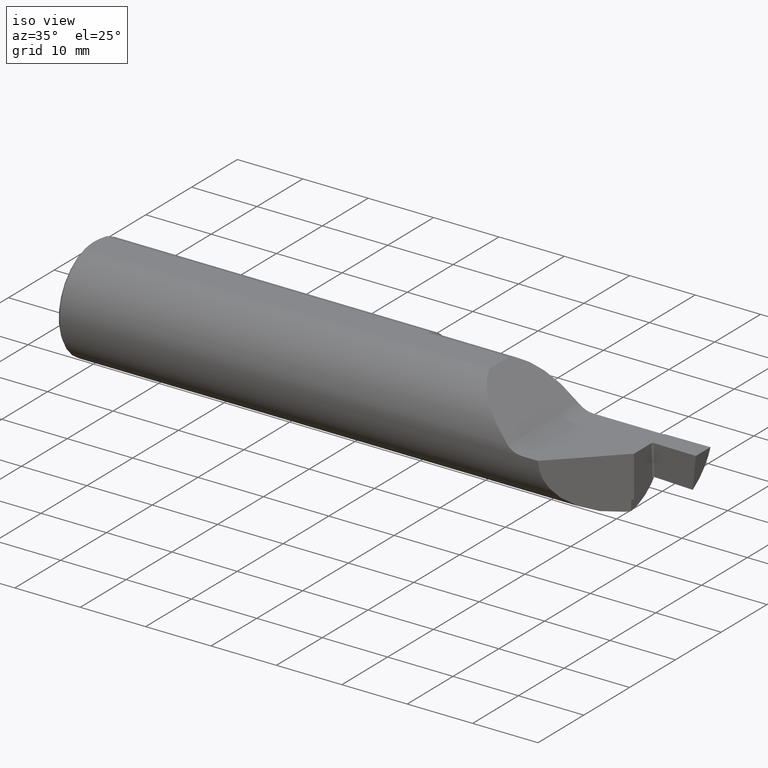
[diagram: clean part render]
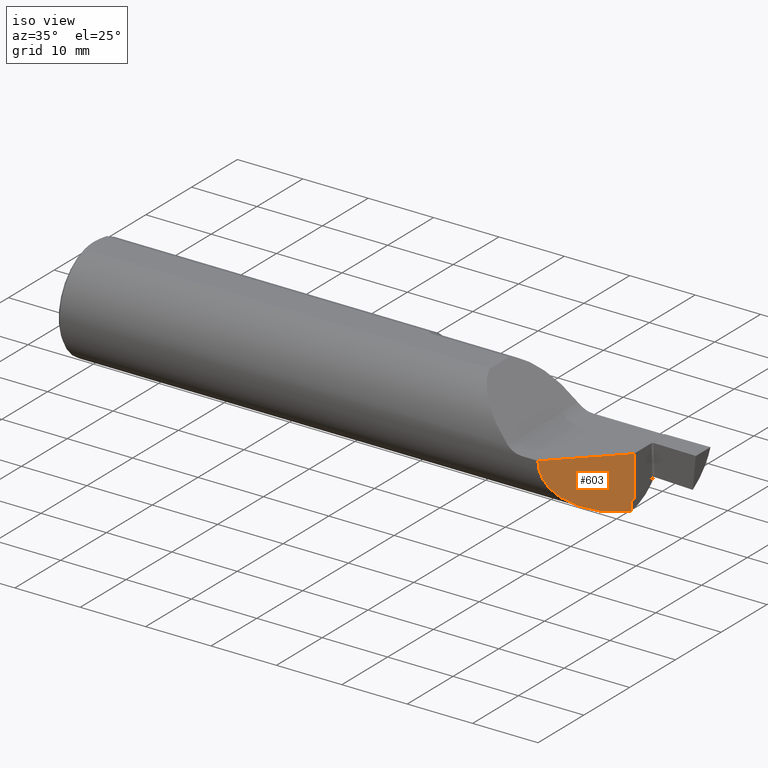
[diagram: same view with one face highlighted and labeled with its STEP entity id]
A machine part, iso view. The second image highlights one B-rep face of the part: STEP entity #603.
In plain terms, the highlighted planar face has unit normal (-0.7071, 0.7071, 0).
Its self-contained STEP definition (entity closure, byte-faithful):
#18 = LINE ( 'NONE', #226, #360 ) ;
#35 = CARTESIAN_POINT ( 'NONE',  ( 3.223040890522496760, 0.01569089052249718688, -0.3109761017956872986 ) ) ;
#38 = VERTEX_POINT ( 'NONE', #875 ) ;
#45 = VECTOR ( 'NONE', #96, 39.37007874015748143 ) ;
#48 = LINE ( 'NONE', #119, #428 ) ;
#52 = DIRECTION ( 'NONE',  ( 0.000000000000000000, 0.000000000000000000, -1.000000000000000000 ) ) ;
#60 = EDGE_CURVE ( 'NONE', #859, #376, #512, .T. ) ;
#62 = EDGE_CURVE ( 'NONE', #38, #859, #246, .T. ) ;
#67 = CARTESIAN_POINT ( 'NONE',  ( 3.228889341448593076, 0.02153934144859292327, -0.2498146972833754920 ) ) ;
#68 = CARTESIAN_POINT ( 'NONE',  ( 2.894999999999998685, -0.3123499999999999610, 0.000000000000000000 ) ) ;
#72 = ORIENTED_EDGE ( 'NONE', *, *, #235, .F. ) ;
#80 =( BOUNDED_CURVE ( )  B_SPLINE_CURVE ( 3, ( #505, #499, #908, #629 ),
 .UNSPECIFIED., .F., .T. ) 
 B_SPLINE_CURVE_WITH_KNOTS ( ( 4, 4 ),
 ( 4.616881410844483113, 4.678243010496542453 ),
 .UNSPECIFIED. ) 
 CURVE ( )  GEOMETRIC_REPRESENTATION_ITEM ( )  RATIONAL_B_SPLINE_CURVE ( ( 1.000000000000000000, 0.9996862541195531415, 0.9996862541195531415, 1.000000000000000000 ) ) 
 REPRESENTATION_ITEM ( '' )  );
#96 = DIRECTION ( 'NONE',  ( -0.000000000000000000, -0.000000000000000000, 1.000000000000000000 ) ) ;
#118 = DIRECTION ( 'NONE',  ( -0.7071067811865487940, -0.7071067811865461294, 0.000000000000000000 ) ) ;
#119 = CARTESIAN_POINT ( 'NONE',  ( 3.225099616961515370, 0.01774961696151583154, 0.04499999999999999833 ) ) ;
#174 = EDGE_CURVE ( 'NONE', #493, #663, #208, .T. ) ;
#176 = EDGE_CURVE ( 'NONE', #903, #493, #80, .T. ) ;
#181 = CARTESIAN_POINT ( 'NONE',  ( 3.225099616961515370, 0.01774961696151593910, -0.3113916447589891168 ) ) ;
#193 = CARTESIAN_POINT ( 'NONE',  ( 3.202867780508205087, -0.004482219491794302291, -0.3123178384409499575 ) ) ;
#208 =( BOUNDED_CURVE ( )  B_SPLINE_CURVE ( 3, ( #193, #323, #600, #68 ),
 .UNSPECIFIED., .F., .T. ) 
 B_SPLINE_CURVE_WITH_KNOTS ( ( 4, 4 ),
 ( 4.726739463296439681, 6.283185307179586232 ),
 .UNSPECIFIED. ) 
 CURVE ( )  GEOMETRIC_REPRESENTATION_ITEM ( )  RATIONAL_B_SPLINE_CURVE ( ( 1.000000000000000000, 0.8081081314965419260, 0.8081081314965419260, 1.000000000000000000 ) ) 
 REPRESENTATION_ITEM ( '' )  );
#212 = CARTESIAN_POINT ( 'NONE',  ( 3.227779290170447180, 0.02042929017044729789, -0.2502200983753286589 ) ) ;
#226 = CARTESIAN_POINT ( 'NONE',  ( 2.772499999999999076, -0.4348499999999991261, 0.000000000000000000 ) ) ;
#235 = EDGE_CURVE ( 'NONE', #713, #282, #48, .T. ) ;
#244 = CARTESIAN_POINT ( 'NONE',  ( 3.230014587472347820, 0.02266458747234821602, -0.2497711272810500815 ) ) ;
#245 = CARTESIAN_POINT ( 'NONE',  ( 3.224090357030892307, 0.01674035703089227223, -0.3110717460355936770 ) ) ;
#246 =( BOUNDED_CURVE ( )  B_SPLINE_CURVE ( 3, ( #244, #668, #741, #649 ),
 .UNSPECIFIED., .F., .T. ) 
 B_SPLINE_CURVE_WITH_KNOTS ( ( 4, 4 ),
 ( 1.610190236659957641, 1.626811526006036068 ),
 .UNSPECIFIED. ) 
 CURVE ( )  GEOMETRIC_REPRESENTATION_ITEM ( )  RATIONAL_B_SPLINE_CURVE ( ( 1.000000000000000000, 0.9999769778608786908, 0.9999769778608786908, 1.000000000000000000 ) ) 
 REPRESENTATION_ITEM ( '' )  );
#277 = CARTESIAN_POINT ( 'NONE',  ( 3.225099616961515370, 0.01774961696151583154, -0.2549231555596238041 ) ) ;
#282 = VERTEX_POINT ( 'NONE', #292 ) ;
#292 = CARTESIAN_POINT ( 'NONE',  ( 3.225099616961515370, 0.01774961696151593910, -0.3113916447589891168 ) ) ;
#320 = ORIENTED_EDGE ( 'NONE', *, *, #923, .F. ) ;
#323 = CARTESIAN_POINT ( 'NONE',  ( 3.021991165542026181, -0.1853588344579733260, -0.3097219934733420055 ) ) ;
#335 = CARTESIAN_POINT ( 'NONE',  ( 3.221999999999999531, 0.01464999999999971360, -0.3110758180985189747 ) ) ;
#342 = AXIS2_PLACEMENT_3D ( 'NONE', #766, #907, #118 ) ;
#360 = VECTOR ( 'NONE', #510, 39.37007874015748854 ) ;
#363 = ORIENTED_EDGE ( 'NONE', *, *, #381, .F. ) ;
#365 = CARTESIAN_POINT ( 'NONE',  ( 3.230014587472347820, 0.02266458747234821602, -0.2497711272810500815 ) ) ;
#375 = B_SPLINE_CURVE_WITH_KNOTS ( 'NONE', 3,
 ( #181, #245, #35, #335 ),
 .UNSPECIFIED., .F., .F.,
 ( 4, 4 ),
 ( 7.419535251870475537E-05, 0.0001853647987949671929 ),
 .UNSPECIFIED. ) ;
#376 = VERTEX_POINT ( 'NONE', #586 ) ;
#381 = EDGE_CURVE ( 'NONE', #663, #376, #18, .T. ) ;
#389 = CARTESIAN_POINT ( 'NONE',  ( 3.221999999999999531, 0.01464999999999971360, -0.3110758180985189747 ) ) ;
#422 = PLANE ( 'NONE',  #342 ) ;
#428 = VECTOR ( 'NONE', #52, 39.37007874015748143 ) ;
#493 = VERTEX_POINT ( 'NONE', #823 ) ;
#499 = CARTESIAN_POINT ( 'NONE',  ( 3.215636298311567387, 0.008286298311567390912, -0.3116854545476832605 ) ) ;
#505 = CARTESIAN_POINT ( 'NONE',  ( 3.221999999999999531, 0.01464999999999971360, -0.3110758180985189747 ) ) ;
#510 = DIRECTION ( 'NONE',  ( 0.7071067811865487940, 0.7071067811865461294, 0.000000000000000000 ) ) ;
#512 = LINE ( 'NONE', #525, #45 ) ;
#525 = CARTESIAN_POINT ( 'NONE',  ( 3.234999999999999876, 0.02765000000000004607, -0.3123500000000000165 ) ) ;
#531 = B_SPLINE_CURVE_WITH_KNOTS ( 'NONE', 3,
 ( #855, #563, #714, #212, #67, #365 ),
 .UNSPECIFIED., .F., .F.,
 ( 4, 2, 4 ),
 ( 0.000000000000000000, 0.0001202551876206173860, 0.0002405103752412347719 ),
 .UNSPECIFIED. ) ;
#561 = ORIENTED_EDGE ( 'NONE', *, *, #176, .F. ) ;
#563 = CARTESIAN_POINT ( 'NONE',  ( 3.225099616961515370, 0.01774961696151583501, -0.2533171957501284544 ) ) ;
#586 = CARTESIAN_POINT ( 'NONE',  ( 3.234999999999999876, 0.02765000000000004607, 0.000000000000000000 ) ) ;
#600 = CARTESIAN_POINT ( 'NONE',  ( 2.894999999999998685, -0.3123500000000000165, -0.1808952411002544558 ) ) ;
#603 = ADVANCED_FACE ( 'NONE', ( #639 ), #422, .F. ) ;
#613 = ORIENTED_EDGE ( 'NONE', *, *, #60, .T. ) ;
#629 = CARTESIAN_POINT ( 'NONE',  ( 3.202867780508205087, -0.004482219491794302291, -0.3123178384409499575 ) ) ;
#639 = FACE_OUTER_BOUND ( 'NONE', #793, .T. ) ;
#649 = CARTESIAN_POINT ( 'NONE',  ( 3.234999999999999876, 0.02765000000000004607, -0.2495373098759380570 ) ) ;
#658 = ORIENTED_EDGE ( 'NONE', *, *, #742, .T. ) ;
#663 = VERTEX_POINT ( 'NONE', #842 ) ;
#668 = CARTESIAN_POINT ( 'NONE',  ( 3.231677031858041449, 0.02432703185804143894, -0.2497067567306455182 ) ) ;
#713 = VERTEX_POINT ( 'NONE', #277 ) ;
#714 = CARTESIAN_POINT ( 'NONE',  ( 3.225875416826466502, 0.01852541682646568696, -0.2519243027147206604 ) ) ;
#741 = CARTESIAN_POINT ( 'NONE',  ( 3.233338874293093745, 0.02598887429309311783, -0.2496288158012412994 ) ) ;
#742 = EDGE_CURVE ( 'NONE', #713, #38, #531, .T. ) ;
#754 = CARTESIAN_POINT ( 'NONE',  ( 3.234999999999999876, 0.02765000000000004607, -0.2495373098759380570 ) ) ;
#766 = CARTESIAN_POINT ( 'NONE',  ( 3.234999999999999876, 0.02765000000000004607, -0.3123500000000000165 ) ) ;
#793 = EDGE_LOOP ( 'NONE', ( #320, #72, #658, #890, #613, #363, #816, #561 ) ) ;
#816 = ORIENTED_EDGE ( 'NONE', *, *, #174, .F. ) ;
#823 = CARTESIAN_POINT ( 'NONE',  ( 3.202867780508205087, -0.004482219491794302291, -0.3123178384409499575 ) ) ;
#842 = CARTESIAN_POINT ( 'NONE',  ( 2.894999999999998685, -0.3123499999999999610, 0.000000000000000000 ) ) ;
#855 = CARTESIAN_POINT ( 'NONE',  ( 3.225099616961515370, 0.01774961696151583154, -0.2549231555596238041 ) ) ;
#859 = VERTEX_POINT ( 'NONE', #754 ) ;
#875 = CARTESIAN_POINT ( 'NONE',  ( 3.230014587472347820, 0.02266458747234821602, -0.2497711272810500815 ) ) ;
#890 = ORIENTED_EDGE ( 'NONE', *, *, #62, .T. ) ;
#903 = VERTEX_POINT ( 'NONE', #389 ) ;
#907 = DIRECTION ( 'NONE',  ( -0.7071067811865462405, 0.7071067811865489050, 0.000000000000000000 ) ) ;
#908 = CARTESIAN_POINT ( 'NONE',  ( 3.209256890301320109, 0.001906890301319757400, -0.3120995912621816748 ) ) ;
#923 = EDGE_CURVE ( 'NONE', #282, #903, #375, .T. ) ;